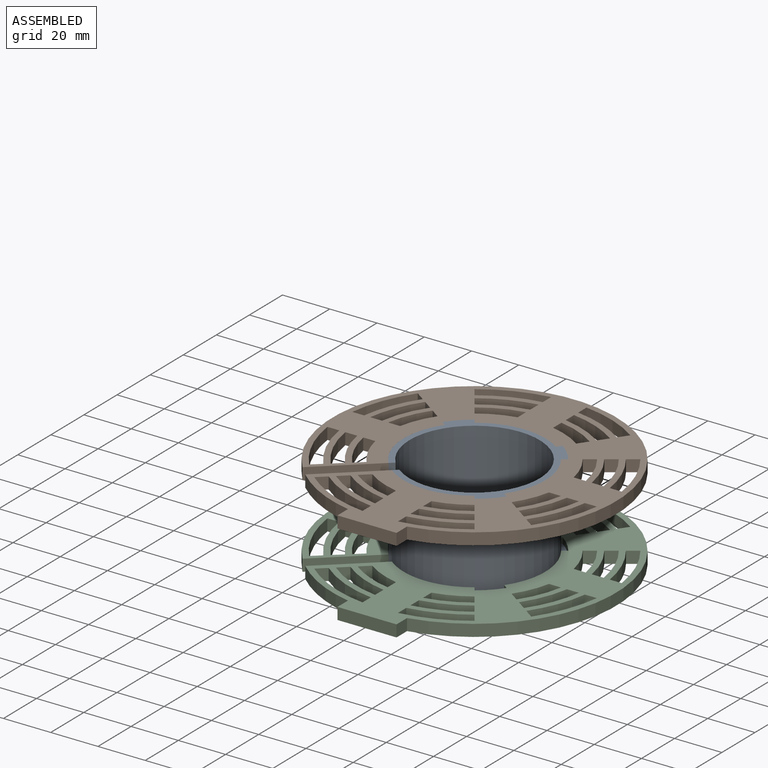
[diagram: assembled view]
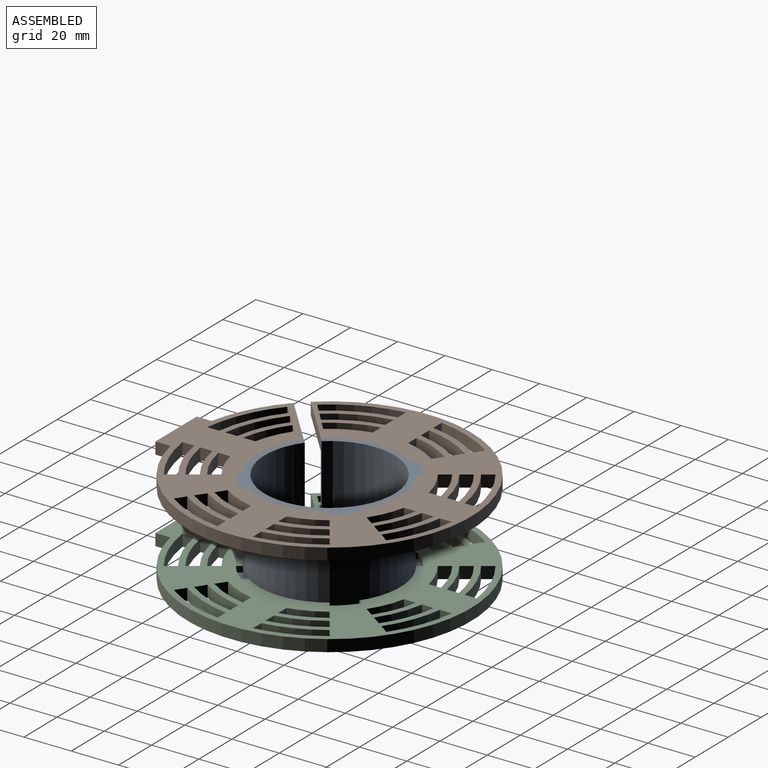
[diagram: assembled view, second angle]
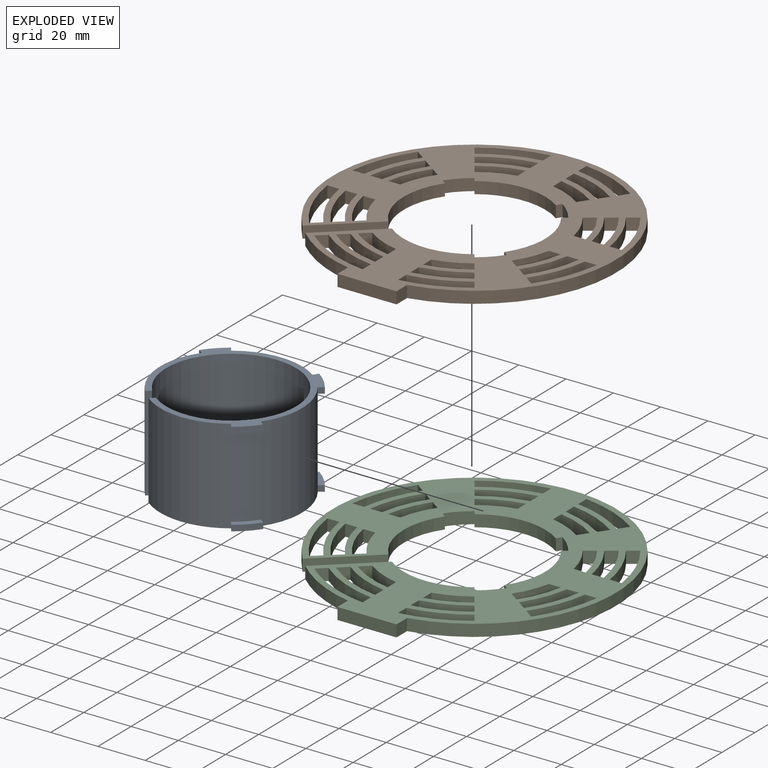
[diagram: exploded view]
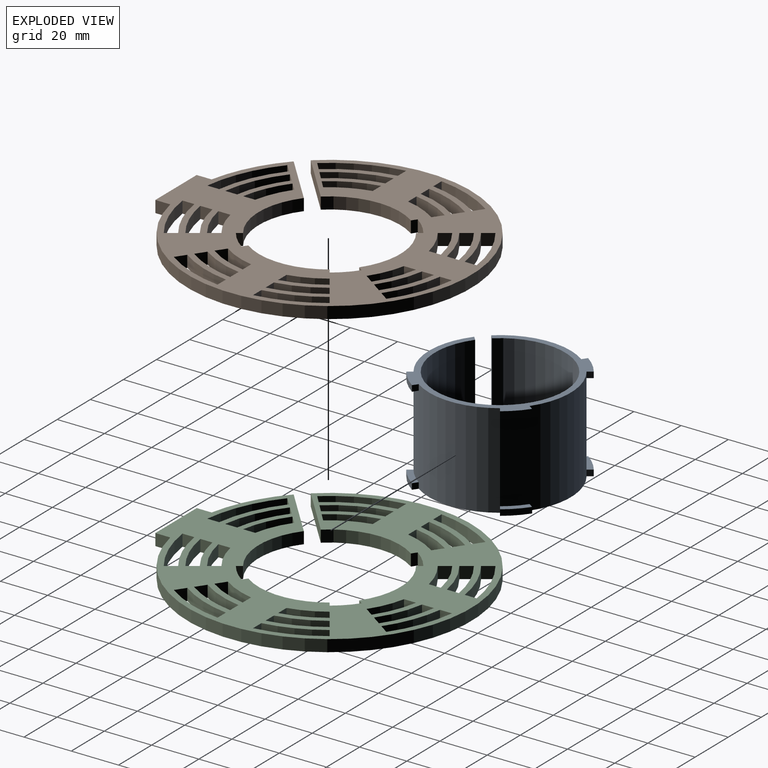
[diagram: exploded view, second angle]
ASSEMBLY  parts=3 mates=2
PART A: 30 faces, bbox 60x60x40 mm
  f0: plane 2.5x2.05mm, normal (-0.57,-0.82,0), area 6.2mm2, adj f1,f19,f23,f28
  f1: cylinder r=32.5mm len=7.98mm, axis (0,0,-1), area 28.4mm2, adj f0,f2,f23,f28
  f2: plane 2.5x2.05mm, normal (0.82,0.57,0), area 6.2mm2, adj f1,f19,f23,f28
  f3: plane 2.5x2.05mm, normal (-0.82,0.57,0), area 6.2mm2, adj f4,f19,f23,f27
  f4: cylinder r=32.5mm len=7.98mm, axis (0,0,-1), area 28.4mm2, adj f3,f5,f23,f27
  f5: plane 2.5x2.05mm, normal (0.57,-0.82,0), area 6.2mm2, adj f4,f19,f23,f27
  f6: plane 2.5x2.05mm, normal (0.57,0.82,0), area 6.2mm2, adj f7,f19,f23,f24
  f7: cylinder r=32.5mm len=7.98mm, axis (0,0,-1), area 28.4mm2, adj f6,f8,f23,f24
  f8: plane 2.5x2.05mm, normal (-0.82,-0.57,0), area 6.2mm2, adj f7,f19,f23,f24
  f9: plane 40x1.9mm, normal (-0.67,0.75,0), area 101.9mm2, adj f19,f21,f22,f23
  f10: plane 2.5x2.05mm, normal (-0.82,-0.57,0), area 6.2mm2, adj f11,f19,f22,f25
  f11: cylinder r=32.5mm len=7.98mm, axis (0,0,-1), area 28.4mm2, adj f10,f12,f22,f25
  f12: plane 2.5x2.05mm, normal (0.57,0.82,0), area 6.2mm2, adj f11,f19,f22,f25
  f13: plane 2.5x2.05mm, normal (0.57,-0.82,0), area 6.2mm2, adj f14,f19,f22,f26
  f14: cylinder r=32.5mm len=7.98mm, axis (0,0,-1), area 28.4mm2, adj f13,f15,f22,f26
  f15: plane 2.5x2.05mm, normal (-0.82,0.57,0), area 6.2mm2, adj f14,f19,f22,f26
  f16: plane 2.5x2.05mm, normal (0.82,0.57,0), area 6.2mm2, adj f17,f19,f22,f29
  f17: cylinder r=32.5mm len=7.98mm, axis (0,0,-1), area 28.4mm2, adj f16,f18,f22,f29
  f18: plane 2.5x2.05mm, normal (-0.57,-0.82,0), area 6.2mm2, adj f17,f19,f22,f29
  f19: cylinder r=30mm len=60mm, axis (0,0,-1), area 7142.4mm2, adj f0,f2,f3,f5,f6,f8,f9,f10
  f20: plane 40x1.87mm, normal (0.66,-0.75,0), area 100mm2, adj f19,f21,f22,f23
  f21: cylinder r=27.5mm len=55mm, axis (0,0,-1), area 6671mm2, adj f9,f20,f22,f23
  f22: plane 60x60mm, normal (0,0,1), area 518.4mm2, adj f9,f10,f11,f12,f13,f14,f15,f16
  f23: plane 60x60mm, normal (0,0,-1), area 518.4mm2, adj f0,f1,f2,f3,f4,f5,f6,f7
  f24: plane 9.42x9.42mm, normal (0,0,1), area 27.3mm2, adj f6,f7,f8,f19
  f25: plane 9.42x9.42mm, normal (0,0,-1), area 27.3mm2, adj f10,f11,f12,f19
  f26: plane 9.42x9.42mm, normal (0,0,-1), area 27.3mm2, adj f13,f14,f15,f19
  f27: plane 9.42x9.42mm, normal (0,0,1), area 27.3mm2, adj f3,f4,f5,f19
  f28: plane 9.42x9.42mm, normal (0,0,1), area 27.3mm2, adj f0,f1,f2,f19
  f29: plane 9.42x9.42mm, normal (0,0,-1), area 27.3mm2, adj f16,f17,f18,f19
PART B: 118 faces, bbox 120x125x5 mm
  f0: plane 5x4.1mm, normal (-0.57,-0.82,0), area 25mm2, adj f1,f115,f116,f117
  f1: cylinder r=37.5mm len=14.01mm, axis (0,0,-1), area 76.8mm2, adj f0,f2,f116,f117
  f2: plane 5.09x5mm, normal (0,1,0), area 25.5mm2, adj f1,f115,f116,f117
  f3: cylinder r=45mm len=18.31mm, axis (0,0,-1), area 99.8mm2, adj f4,f91,f116,f117
  f4: plane 5.06x5mm, normal (0,1,0), area 25.3mm2, adj f3,f5,f116,f117
  f5: cylinder r=50mm len=21.18mm, axis (0,0,-1), area 115.1mm2, adj f4,f91,f116,f117
  f6: cylinder r=52.5mm len=22.61mm, axis (0,0,-1), area 122.7mm2, adj f7,f92,f116,f117
  f7: plane 5.05x5mm, normal (0,1,0), area 25.2mm2, adj f6,f8,f116,f117
  f8: cylinder r=57.5mm len=25.48mm, axis (0,0,-1), area 138mm2, adj f7,f92,f116,f117
  f9: cylinder r=42.5mm len=16.88mm, axis (0,0,-1), area 92.1mm2, adj f10,f93,f116,f117
  f10: plane 5.09x5mm, normal (0,1,0), area 25.5mm2, adj f9,f11,f116,f117
  f11: cylinder r=37.5mm len=14.01mm, axis (0,0,-1), area 76.8mm2, adj f10,f93,f116,f117
  f12: plane 5x4.1mm, normal (-0.82,0.57,0), area 25mm2, adj f13,f94,f116,f117
  f13: cylinder r=37.5mm len=14.01mm, axis (0,0,-1), area 76.8mm2, adj f12,f14,f116,f117
  f14: plane 5.09x5mm, normal (1,0,0), area 25.5mm2, adj f13,f94,f116,f117
  f15: cylinder r=50mm len=21.18mm, axis (0,0,-1), area 115.1mm2, adj f16,f95,f116,f117
  f16: plane 5.06x5mm, normal (0,1,0), area 25.3mm2, adj f15,f17,f116,f117
  f17: cylinder r=45mm len=18.31mm, axis (0,0,-1), area 99.8mm2, adj f16,f95,f116,f117
  f18: plane 5.05x5mm, normal (0,1,0), area 25.2mm2, adj f19,f96,f116,f117
  f19: cylinder r=52.5mm len=22.61mm, axis (0,0,-1), area 122.7mm2, adj f18,f20,f116,f117
  f20: plane 5x4.1mm, normal (0.57,-0.82,0), area 25mm2, adj f19,f96,f116,f117
  f21: cylinder r=52.5mm len=22.61mm, axis (0,0,-1), area 122.7mm2, adj f22,f97,f116,f117
  f22: plane 5.05x5mm, normal (1,0,0), area 25.2mm2, adj f21,f23,f116,f117
  f23: cylinder r=57.5mm len=25.48mm, axis (0,0,-1), area 138mm2, adj f22,f97,f116,f117
  f24: cylinder r=45mm len=18.31mm, axis (0,0,-1), area 99.8mm2, adj f25,f98,f116,f117
  f25: plane 5.06x5mm, normal (1,0,0), area 25.3mm2, adj f24,f26,f116,f117
  f26: cylinder r=50mm len=21.18mm, axis (0,0,-1), area 115.1mm2, adj f25,f98,f116,f117
  f27: cylinder r=50mm len=21.18mm, axis (0,0,-1), area 115.1mm2, adj f28,f99,f116,f117
  f28: plane 5.06x5mm, normal (1,0,0), area 25.3mm2, adj f27,f29,f116,f117
  f29: cylinder r=45mm len=18.31mm, axis (0,0,-1), area 99.8mm2, adj f28,f99,f116,f117
  f30: cylinder r=57.5mm len=25.48mm, axis (0,0,-1), area 138mm2, adj f31,f100,f116,f117
  f31: plane 5.05x5mm, normal (1,0,0), area 25.2mm2, adj f30,f32,f116,f117
  f32: cylinder r=52.5mm len=22.61mm, axis (0,0,-1), area 122.7mm2, adj f31,f100,f116,f117
  f33: cylinder r=42.5mm len=16.88mm, axis (0,0,-1), area 92.1mm2, adj f34,f101,f116,f117
  f34: plane 5.09x5mm, normal (1,0,0), area 25.5mm2, adj f33,f35,f116,f117
  f35: cylinder r=37.5mm len=14.01mm, axis (0,0,-1), area 76.8mm2, adj f34,f101,f116,f117
  f36: plane 5.05x5mm, normal (0,-1,0), area 25.2mm2, adj f37,f102,f116,f117
  f37: cylinder r=57.5mm len=25.48mm, axis (0,0,-1), area 138mm2, adj f36,f38,f116,f117
  f38: plane 5x4.1mm, normal (0.57,0.82,0), area 25mm2, adj f37,f102,f116,f117
  f39: plane 5.06x5mm, normal (0,-1,0), area 25.3mm2, adj f40,f103,f116,f117
  f40: cylinder r=50mm len=21.18mm, axis (0,0,-1), area 115.1mm2, adj f39,f41,f116,f117
  f41: plane 5x4.1mm, normal (0.57,0.82,0), area 25mm2, adj f40,f103,f116,f117
  f42: plane 5.09x5mm, normal (0,-1,0), area 25.5mm2, adj f43,f104,f116,f117
  f43: cylinder r=42.5mm len=16.88mm, axis (0,0,-1), area 92.1mm2, adj f42,f44,f116,f117
  f44: plane 5x4.1mm, normal (0.57,0.82,0), area 25mm2, adj f43,f104,f116,f117
  f45: plane 5.06x5mm, normal (-1,0,0), area 25.3mm2, adj f46,f105,f116,f117
  f46: cylinder r=45mm len=18.31mm, axis (0,0,-1), area 99.8mm2, adj f45,f47,f116,f117
  f47: plane 5x4.1mm, normal (0.82,0.57,0), area 25mm2, adj f46,f105,f116,f117
  f48: plane 5.05x5mm, normal (-1,0,0), area 25.2mm2, adj f49,f106,f116,f117
  f49: cylinder r=52.5mm len=22.61mm, axis (0,0,-1), area 122.7mm2, adj f48,f50,f116,f117
  f50: plane 5x4.1mm, normal (0.82,0.57,0), area 25mm2, adj f49,f106,f116,f117
  f51: plane 5.09x5mm, normal (-1,0,0), area 25.5mm2, adj f52,f107,f116,f117
  f52: cylinder r=37.5mm len=14.01mm, axis (0,0,-1), area 76.8mm2, adj f51,f53,f116,f117
  f53: plane 5x4.1mm, normal (0.82,0.57,0), area 25mm2, adj f52,f107,f116,f117
  f54: plane 5.09x5mm, normal (0,-1,0), area 25.5mm2, adj f55,f108,f116,f117
  f55: cylinder r=37.5mm len=15.8mm, axis (0,0,-1), area 88mm2, adj f54,f56,f116,f117
  f56: plane 5x3.78mm, normal (-0.65,0.76,0), area 25mm2, adj f55,f108,f116,f117
  f57: plane 5.06x5mm, normal (0,-1,0), area 25.3mm2, adj f58,f109,f116,f117
  f58: cylinder r=45mm len=20.72mm, axis (0,0,-1), area 114.8mm2, adj f57,f59,f116,f117
  f59: plane 5x3.78mm, normal (-0.65,0.76,0), area 25mm2, adj f58,f109,f116,f117
  f60: plane 5.09x5mm, normal (-1,0,0), area 25.5mm2, adj f61,f110,f116,f117
  f61: cylinder r=42.5mm len=18.29mm, axis (0,0,-1), area 100.9mm2, adj f60,f62,f116,f117
  f62: plane 5x3.8mm, normal (0.67,-0.74,0), area 25.5mm2, adj f61,f110,f116,f117
  f63: plane 5.06x5mm, normal (-1,0,0), area 25.3mm2, adj f64,f111,f116,f117
  f64: cylinder r=50mm len=23.96mm, axis (0,0,-1), area 132.5mm2, adj f63,f65,f116,f117
  f65: plane 5x3.78mm, normal (0.67,-0.74,0), area 25.4mm2, adj f64,f111,f116,f117
  f66: plane 5.05x5mm, normal (-1,0,0), area 25.2mm2, adj f67,f112,f116,f117
  f67: cylinder r=57.5mm len=29.61mm, axis (0,0,-1), area 164.1mm2, adj f66,f68,f116,f117
  f68: plane 5x3.76mm, normal (0.67,-0.74,0), area 25.3mm2, adj f67,f112,f116,f117
  f69: plane 5.05x5mm, normal (0,-1,0), area 25.2mm2, adj f70,f113,f116,f117
  f70: cylinder r=52.5mm len=25.63mm, axis (0,0,-1), area 141.6mm2, adj f69,f71,f116,f117
  f71: plane 5x3.78mm, normal (-0.65,0.76,0), area 25mm2, adj f70,f113,f116,f117
  f72: plane 6.32x5mm, normal (1,0,0), area 31.6mm2, adj f73,f114,f116,f117
  f73: cylinder r=60mm len=120mm, axis (0,0,-1), area 1566.8mm2, adj f72,f74,f116,f117
  f74: plane 22.41x19.94mm, normal (0.66,-0.75,0), area 150mm2, adj f73,f75,f116,f117
  f75: cylinder r=30mm len=36.83mm, axis (0,0,-1), area 198.6mm2, adj f74,f76,f116,f117
  f76: plane 5x2.05mm, normal (0.57,0.82,0), area 12.5mm2, adj f75,f77,f116,f117
  f77: cylinder r=32.5mm len=7.98mm, axis (0,0,-1), area 56.7mm2, adj f76,f78,f116,f117
  f78: plane 5x2.05mm, normal (-0.82,-0.57,0), area 12.5mm2, adj f77,f79,f116,f117
  f79: cylinder r=30mm len=34.41mm, axis (0,0,-1), area 183.3mm2, adj f78,f80,f116,f117
  f80: plane 5x2.05mm, normal (0.82,-0.57,0), area 12.5mm2, adj f79,f81,f116,f117
  f81: cylinder r=32.5mm len=7.98mm, axis (0,0,-1), area 56.7mm2, adj f80,f82,f116,f117
  f82: plane 5x2.05mm, normal (-0.57,0.82,0), area 12.5mm2, adj f81,f83,f116,f117
  f83: cylinder r=30mm len=34.41mm, axis (0,0,-1), area 183.3mm2, adj f82,f84,f116,f117
  f84: plane 5x2.05mm, normal (-0.57,-0.82,0), area 12.5mm2, adj f83,f85,f116,f117
  f85: cylinder r=32.5mm len=7.98mm, axis (0,0,-1), area 56.7mm2, adj f84,f86,f116,f117
  f86: plane 5x2.05mm, normal (0.82,0.57,0), area 12.5mm2, adj f85,f87,f116,f117
  f87: cylinder r=30mm len=35.55mm, axis (0,0,-1), area 190.3mm2, adj f86,f88,f116,f117
  f88: plane 22.59x20.13mm, normal (-0.67,0.75,0), area 151.3mm2, adj f87,f89,f116,f117
  f89: cylinder r=60mm len=28.43mm, axis (0,0,-1), area 162.3mm2, adj f88,f90,f116,f117
  f90: plane 6.32x5mm, normal (-1,0,0), area 31.6mm2, adj f89,f114,f116,f117
  f91: plane 5x4.1mm, normal (-0.57,-0.82,0), area 25mm2, adj f3,f5,f116,f117
  f92: plane 5x4.1mm, normal (-0.57,-0.82,0), area 25mm2, adj f6,f8,f116,f117
  f93: plane 5x4.1mm, normal (0.57,-0.82,0), area 25mm2, adj f9,f11,f116,f117
  f94: cylinder r=42.5mm len=16.88mm, axis (0,0,-1), area 92.1mm2, adj f12,f14,f116,f117
  f95: plane 5x4.1mm, normal (0.57,-0.82,0), area 25mm2, adj f15,f17,f116,f117
  f96: cylinder r=57.5mm len=25.48mm, axis (0,0,-1), area 138mm2, adj f18,f20,f116,f117
  f97: plane 5x4.1mm, normal (-0.82,0.57,0), area 25mm2, adj f21,f23,f116,f117
  f98: plane 5x4.1mm, normal (-0.82,0.57,0), area 25mm2, adj f24,f26,f116,f117
  f99: plane 5x4.1mm, normal (-0.82,-0.57,0), area 25mm2, adj f27,f29,f116,f117
  f100: plane 5x4.1mm, normal (-0.82,-0.57,0), area 25mm2, adj f30,f32,f116,f117
  f101: plane 5x4.1mm, normal (-0.82,-0.57,0), area 25mm2, adj f33,f35,f116,f117
  f102: cylinder r=52.5mm len=22.61mm, axis (0,0,-1), area 122.7mm2, adj f36,f38,f116,f117
  f103: cylinder r=45mm len=18.31mm, axis (0,0,-1), area 99.8mm2, adj f39,f41,f116,f117
  f104: cylinder r=37.5mm len=14.01mm, axis (0,0,-1), area 76.8mm2, adj f42,f44,f116,f117
  f105: cylinder r=50mm len=21.18mm, axis (0,0,-1), area 115.1mm2, adj f45,f47,f116,f117
  f106: cylinder r=57.5mm len=25.48mm, axis (0,0,-1), area 138mm2, adj f48,f50,f116,f117
  f107: cylinder r=42.5mm len=16.88mm, axis (0,0,-1), area 92.1mm2, adj f51,f53,f116,f117
  f108: cylinder r=42.5mm len=19.08mm, axis (0,0,-1), area 105.9mm2, adj f54,f56,f116,f117
  f109: cylinder r=50mm len=23.99mm, axis (0,0,-1), area 132.7mm2, adj f57,f59,f116,f117
  f110: cylinder r=37.5mm len=14.49mm, axis (0,0,-1), area 79.7mm2, adj f60,f62,f116,f117
  f111: cylinder r=45mm len=20.18mm, axis (0,0,-1), area 111.4mm2, adj f63,f65,f116,f117
  f112: cylinder r=52.5mm len=25.85mm, axis (0,0,-1), area 143mm2, adj f66,f68,f116,f117
  f113: cylinder r=57.5mm len=28.91mm, axis (0,0,-1), area 159.5mm2, adj f69,f71,f116,f117
  f114: plane 25x5mm, normal (0,-1,0), area 125mm2, adj f72,f90,f116,f117
  f115: cylinder r=42.5mm len=16.88mm, axis (0,0,-1), area 92.1mm2, adj f0,f2,f116,f117
  f116: plane 125x120mm, normal (0,0,1), area 5685.8mm2, adj f0,f1,f2,f3,f4,f5,f6,f7
  f117: plane 125x120mm, normal (0,0,-1), area 5685.8mm2, adj f0,f1,f2,f3,f4,f5,f6,f7
PART C: same geometry as B
PLACE A t=(-0.4,31.04,20.06)mm
PLACE B t=(-0.4,31.04,55.06)mm
PLACE C t=(-0.4,31.04,20.06)mm
MATE fastened C.f77 <-> A.f1  axis (0,0,-1) through (-0.4,31.04,20.06)mm
MATE fastened A.f1 <-> B.f77  axis (0,0,1) through (-0.4,31.04,60.06)mm
